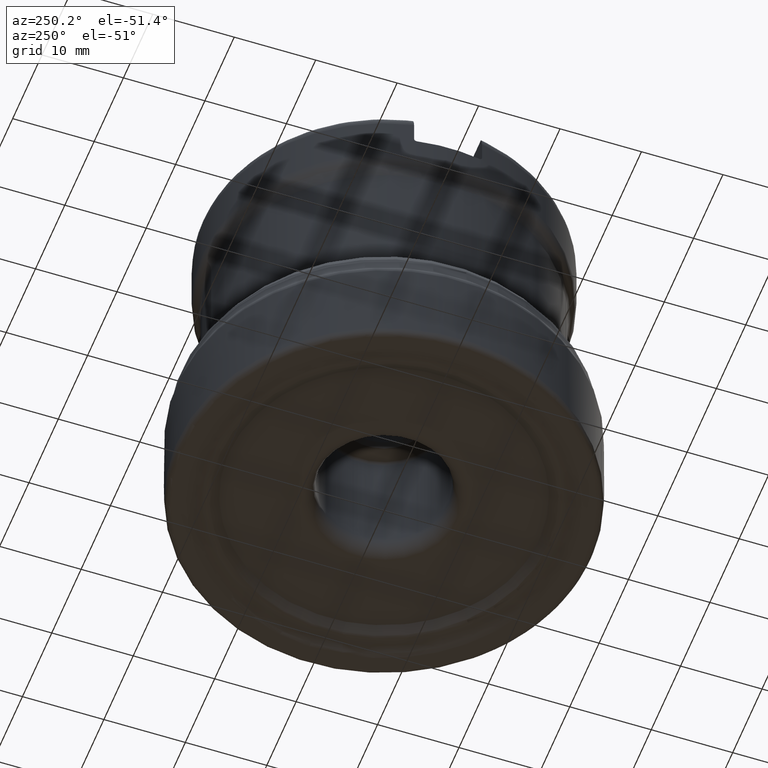
[diagram: clean part render]
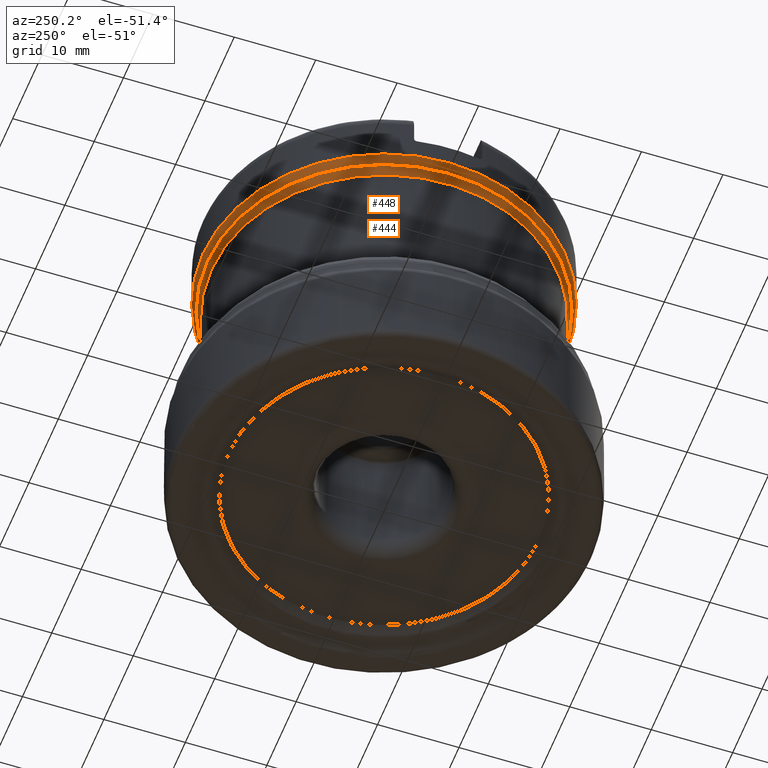
[diagram: same view with one multi-face feature highlighted, each face labeled with its STEP entity id]
A machine part, auxiliary view. The highlighted faces form ONE feature: a constant-radius fillet chain: 2 tangent blend faces with common blend radius 2 mm. The faces share edges in the B-rep.
Their STEP definitions:
[1] entity #448 (Torus):
#321=FACE_BOUND('',#619,.T.);
#322=FACE_BOUND('',#620,.T.);
#448=ADVANCED_FACE('',(#321,#322),#502,.T.);
#502=TOROIDAL_SURFACE('',#1559,20.225,2.);
#619=EDGE_LOOP('',(#918));
#620=EDGE_LOOP('',(#919));
#918=ORIENTED_EDGE('',*,*,#1150,.F.);
#919=ORIENTED_EDGE('',*,*,#1256,.F.);
#1025=VERTEX_POINT('',#2416);
#1099=VERTEX_POINT('',#3236);
#1150=EDGE_CURVE('',#1025,#1025,#1299,.T.);
#1256=EDGE_CURVE('',#1099,#1099,#1336,.T.);
#1299=CIRCLE('',#1465,22.225);
#1336=CIRCLE('',#1553,21.725);
#1465=AXIS2_PLACEMENT_3D('',#2415,#1633,#1634);
#1553=AXIS2_PLACEMENT_3D('',#3235,#1833,#1834);
#1559=AXIS2_PLACEMENT_3D('',#3243,#1845,#1846);
#1633=DIRECTION('',(0.,1.17145536458252E-15,1.));
#1634=DIRECTION('',(0.,-1.,1.24884479710366E-15));
#1833=DIRECTION('',(0.,-1.17145536458252E-15,-1.));
#1834=DIRECTION('',(0.,1.,-1.27758690981031E-15));
#1845=DIRECTION('',(0.,1.17145536458252E-15,1.));
#1846=DIRECTION('',(0.,-1.,1.24884479710366E-15));
#2415=CARTESIAN_POINT('',(0.,4.33055702323241E-14,36.9673241863185));
#2416=CARTESIAN_POINT('',(0.,-22.225,36.9673241863185));
#3235=CARTESIAN_POINT('',(0.,4.17558804489752E-14,35.6444485307862));
#3236=CARTESIAN_POINT('',(0.,21.725,35.6444485307862));
#3243=CARTESIAN_POINT('',(0.,4.33055702323241E-14,36.9673241863185));
[2] entity #444 (Torus):
#313=FACE_BOUND('',#611,.T.);
#314=FACE_BOUND('',#612,.T.);
#444=ADVANCED_FACE('',(#313,#314),#498,.F.);
#498=TOROIDAL_SURFACE('',#1554,23.225,2.);
#611=EDGE_LOOP('',(#910));
#612=EDGE_LOOP('',(#911));
#910=ORIENTED_EDGE('',*,*,#1256,.T.);
#911=ORIENTED_EDGE('',*,*,#1194,.F.);
#1065=VERTEX_POINT('',#2930);
#1099=VERTEX_POINT('',#3236);
#1194=EDGE_CURVE('',#1065,#1065,#1318,.T.);
#1256=EDGE_CURVE('',#1099,#1099,#1336,.T.);
#1318=CIRCLE('',#1494,21.225);
#1336=CIRCLE('',#1553,21.725);
#1494=AXIS2_PLACEMENT_3D('',#2929,#1699,#1700);
#1553=AXIS2_PLACEMENT_3D('',#3235,#1833,#1834);
#1554=AXIS2_PLACEMENT_3D('',#3237,#1835,#1836);
#1699=DIRECTION('',(0.,-1.17145536458252E-15,-1.));
#1700=DIRECTION('',(0.,1.,-1.30768318565978E-15));
#1833=DIRECTION('',(0.,-1.17145536458252E-15,-1.));
#1834=DIRECTION('',(0.,1.,-1.27758690981031E-15));
#1835=DIRECTION('',(0.,-1.17145536458252E-15,-1.));
#1836=DIRECTION('',(0.,1.,-1.10032014333514E-15));
#2929=CARTESIAN_POINT('',(0.,4.02061906656261E-14,34.3215728752538));
#2930=CARTESIAN_POINT('',(0.,21.225,34.3215728752538));
#3235=CARTESIAN_POINT('',(0.,4.17558804489752E-14,35.6444485307862));
#3236=CARTESIAN_POINT('',(0.,21.725,35.6444485307862));
#3237=CARTESIAN_POINT('',(0.,4.02061906656261E-14,34.3215728752538));